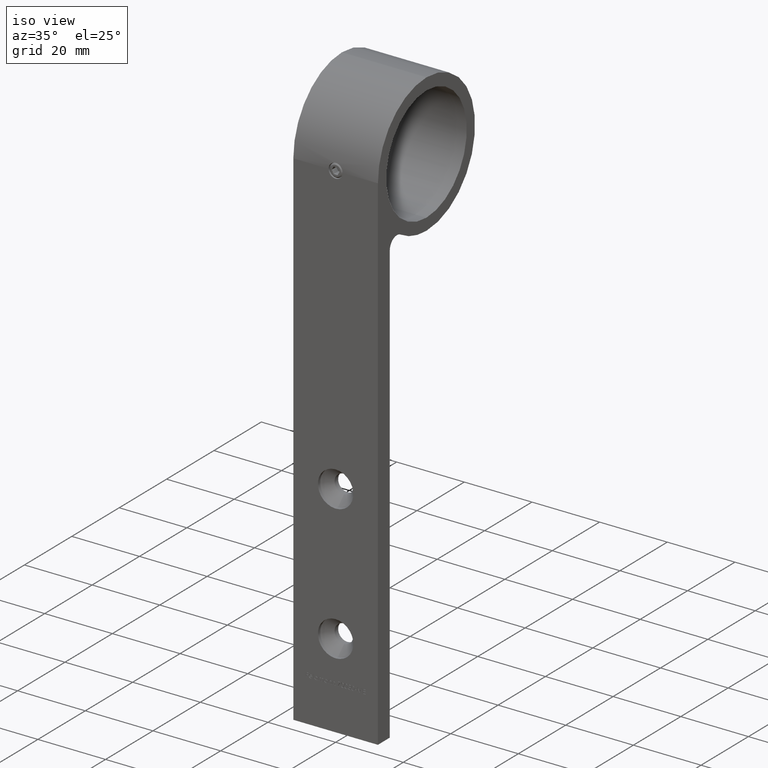
[diagram: clean part render]
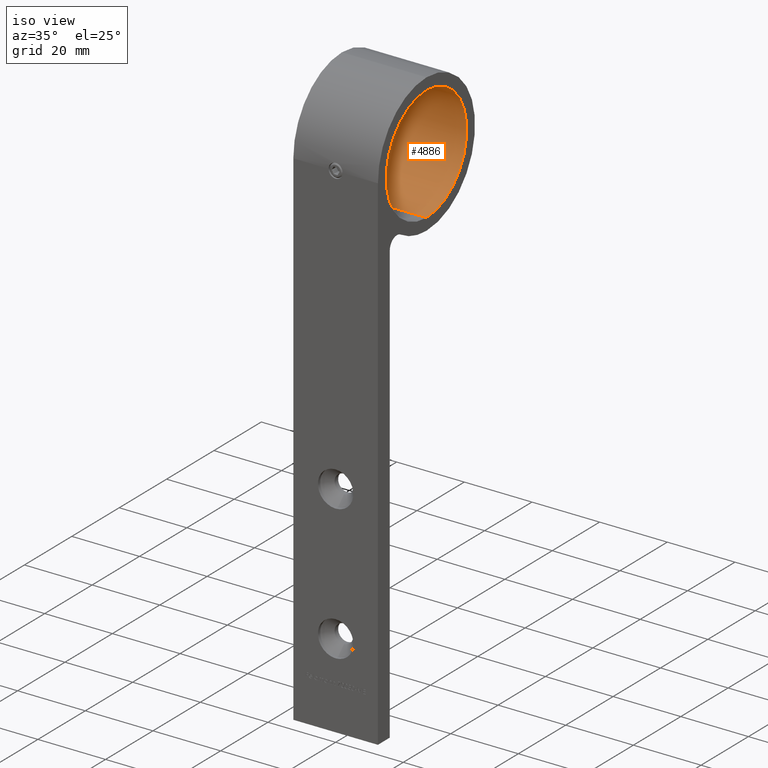
[diagram: same view with one face highlighted and labeled with its STEP entity id]
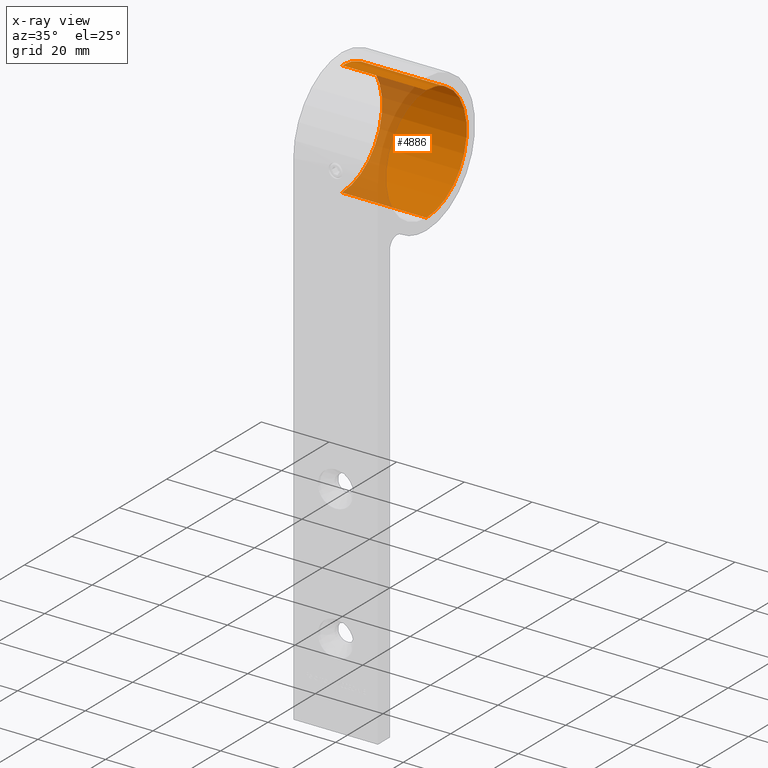
[diagram: x-ray of the same camera — body ghosted, the highlighted face saturated]
A machine part, iso view. The second image highlights one B-rep face of the part: STEP entity #4886.
The next image is the same camera in x-ray: the body ghosted, the highlighted face saturated — about 27% of this face is hidden behind the body in this view.
In plain terms, the highlighted cylindrical surface (partial cylindrical patch) has radius 17 mm, axis along (-1, -0, -0).
Its self-contained STEP definition (entity closure, byte-faithful):
#60 = EDGE_CURVE ( 'NONE', #8145, #12774, #2739, .T. ) ;
#469 = AXIS2_PLACEMENT_3D ( 'NONE', #4765, #4804, #1863 ) ;
#662 = AXIS2_PLACEMENT_3D ( 'NONE', #2028, #11935, #9019 ) ;
#1166 = VERTEX_POINT ( 'NONE', #11349 ) ;
#1861 = EDGE_CURVE ( 'NONE', #6884, #8145, #11779, .T. ) ;
#1863 = DIRECTION ( 'NONE',  ( 0.0000000000000000000, 0.0000000000000000000, 1.000000000000000000 ) ) ;
#1893 = CYLINDRICAL_SURFACE ( 'NONE', #469, 17.00000000000000000 ) ;
#2028 = CARTESIAN_POINT ( 'NONE',  ( -12.50000000000000000, 20.50000000000000000, 0.0000000000000000000 ) ) ;
#2563 = CARTESIAN_POINT ( 'NONE',  ( 12.50000000000000000, 20.50000000000000400, -17.00000000000000000 ) ) ;
#2739 = LINE ( 'NONE', #4938, #4584 ) ;
#3001 = FACE_OUTER_BOUND ( 'NONE', #10998, .T. ) ;
#3246 = DIRECTION ( 'NONE',  ( 1.000000000000000000, 0.0000000000000000000, 0.0000000000000000000 ) ) ;
#3865 = DIRECTION ( 'NONE',  ( -1.000000000000000000, -0.0000000000000000000, -0.0000000000000000000 ) ) ;
#4584 = VECTOR ( 'NONE', #3865, 1000.000000000000000 ) ;
#4765 = CARTESIAN_POINT ( 'NONE',  ( 12.50000000000000000, 20.50000000000000000, 0.0000000000000000000 ) ) ;
#4804 = DIRECTION ( 'NONE',  ( -1.000000000000000000, -0.0000000000000000000, -0.0000000000000000000 ) ) ;
#4886 = ADVANCED_FACE ( 'NONE', ( #3001 ), #1893, .F. ) ;
#4938 = CARTESIAN_POINT ( 'NONE',  ( 12.50000000000000000, 20.50000000000000000, 17.00000000000000000 ) ) ;
#4997 = AXIS2_PLACEMENT_3D ( 'NONE', #5043, #3246, #7206 ) ;
#5043 = CARTESIAN_POINT ( 'NONE',  ( 12.50000000000000000, 20.50000000000000000, 0.0000000000000000000 ) ) ;
#5793 = DIRECTION ( 'NONE',  ( -1.000000000000000000, -0.0000000000000000000, -0.0000000000000000000 ) ) ;
#5910 = ORIENTED_EDGE ( 'NONE', *, *, #10654, .F. ) ;
#6884 = VERTEX_POINT ( 'NONE', #2563 ) ;
#7206 = DIRECTION ( 'NONE',  ( 0.0000000000000000000, 0.0000000000000000000, -1.000000000000000000 ) ) ;
#8145 = VERTEX_POINT ( 'NONE', #9017 ) ;
#8425 = ORIENTED_EDGE ( 'NONE', *, *, #11430, .F. ) ;
#9017 = CARTESIAN_POINT ( 'NONE',  ( 12.50000000000000000, 20.50000000000000000, 17.00000000000000000 ) ) ;
#9019 = DIRECTION ( 'NONE',  ( 0.0000000000000000000, 0.0000000000000000000, -1.000000000000000000 ) ) ;
#9164 = ORIENTED_EDGE ( 'NONE', *, *, #60, .T. ) ;
#9805 = LINE ( 'NONE', #10778, #12144 ) ;
#10332 = CIRCLE ( 'NONE', #662, 17.00000000000000000 ) ;
#10654 = EDGE_CURVE ( 'NONE', #6884, #1166, #9805, .T. ) ;
#10778 = CARTESIAN_POINT ( 'NONE',  ( 12.50000000000000000, 20.50000000000000400, -17.00000000000000000 ) ) ;
#10998 = EDGE_LOOP ( 'NONE', ( #5910, #11966, #9164, #8425 ) ) ;
#11349 = CARTESIAN_POINT ( 'NONE',  ( -12.50000000000000000, 20.50000000000000400, -17.00000000000000000 ) ) ;
#11430 = EDGE_CURVE ( 'NONE', #1166, #12774, #10332, .T. ) ;
#11779 = CIRCLE ( 'NONE', #4997, 17.00000000000000000 ) ;
#11783 = CARTESIAN_POINT ( 'NONE',  ( -12.50000000000000000, 20.50000000000000000, 17.00000000000000000 ) ) ;
#11935 = DIRECTION ( 'NONE',  ( 1.000000000000000000, 0.0000000000000000000, 0.0000000000000000000 ) ) ;
#11966 = ORIENTED_EDGE ( 'NONE', *, *, #1861, .T. ) ;
#12144 = VECTOR ( 'NONE', #5793, 1000.000000000000000 ) ;
#12774 = VERTEX_POINT ( 'NONE', #11783 ) ;